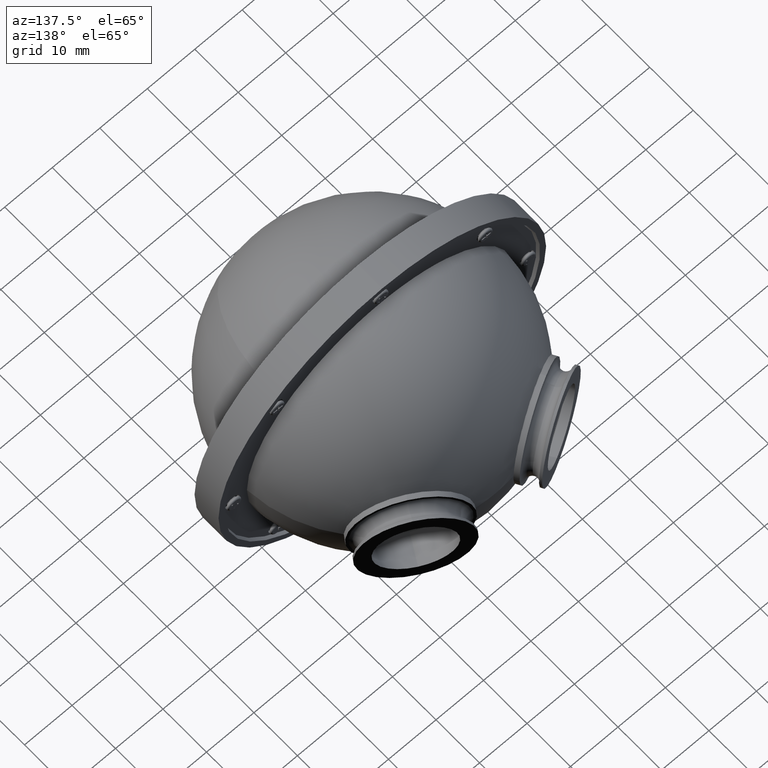
[diagram: clean part render]
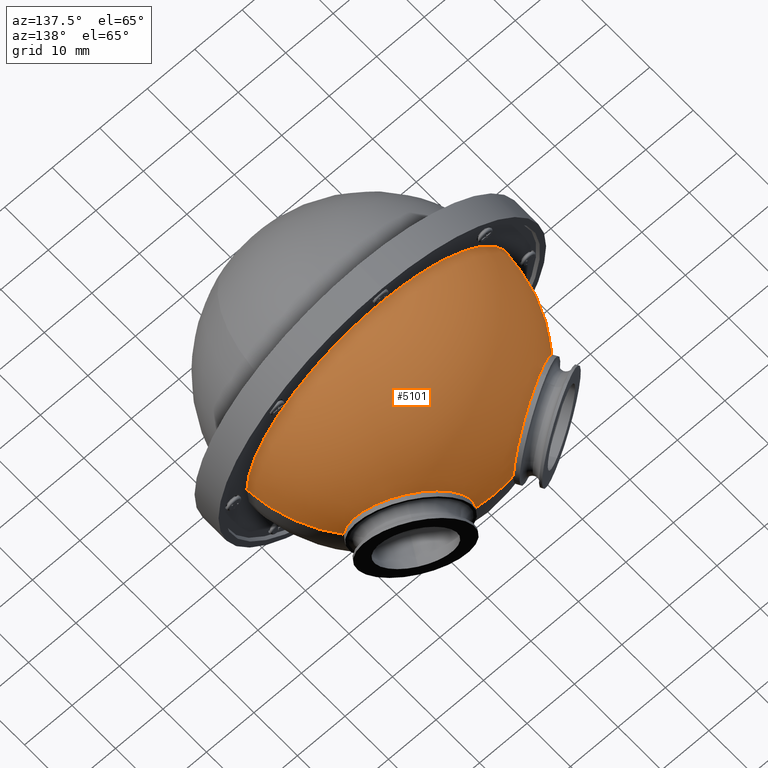
[diagram: same view with one face highlighted and labeled with its STEP entity id]
A machine part, auxiliary view. The second image highlights one B-rep face of the part: STEP entity #5101.
In plain terms, the highlighted spherical surface has radius 28 mm.
Its self-contained STEP definition (entity closure, byte-faithful):
#7 = VERTEX_POINT ( 'NONE', #3384 ) ;
#177 = DIRECTION ( 'NONE',  ( 1.000000000000000000, 0.000000000000000000, -1.224646799147353207E-16 ) ) ;
#181 = EDGE_CURVE ( 'NONE', #4169, #5608, #2011, .T. ) ;
#206 = ORIENTED_EDGE ( 'NONE', *, *, #214, .T. ) ;
#214 = EDGE_CURVE ( 'NONE', #1042, #969, #6303, .T. ) ;
#863 = DIRECTION ( 'NONE',  ( 0.000000000000000000, 0.000000000000000000, -1.000000000000000000 ) ) ;
#880 = AXIS2_PLACEMENT_3D ( 'NONE', #4226, #3654, #2482 ) ;
#969 = VERTEX_POINT ( 'NONE', #1597 ) ;
#1015 = EDGE_CURVE ( 'NONE', #1053, #5608, #2603, .T. ) ;
#1042 = VERTEX_POINT ( 'NONE', #1250 ) ;
#1053 = VERTEX_POINT ( 'NONE', #1897 ) ;
#1154 = ORIENTED_EDGE ( 'NONE', *, *, #1015, .T. ) ;
#1242 = AXIS2_PLACEMENT_3D ( 'NONE', #3358, #4354, #1448 ) ;
#1245 = ORIENTED_EDGE ( 'NONE', *, *, #181, .F. ) ;
#1250 = CARTESIAN_POINT ( 'NONE',  ( 4.067576156830836176, 9.738637418628080411, 5.408582529792328972E-16 ) ) ;
#1448 = DIRECTION ( 'NONE',  ( 0.000000000000000000, 0.000000000000000000, -1.000000000000000000 ) ) ;
#1597 = CARTESIAN_POINT ( 'NONE',  ( -13.25293191885799615, -0.2613625813718163382, 2.662008730429053827E-15 ) ) ;
#1643 = DIRECTION ( 'NONE',  ( 0.000000000000000000, 0.000000000000000000, -1.000000000000000000 ) ) ;
#1897 = CARTESIAN_POINT ( 'NONE',  ( -19.47577361042331745, -16.41086588718419748, 3.424087046346671680E-15 ) ) ;
#2011 = CIRCLE ( 'NONE', #6920, 28.00000000000000000 ) ;
#2014 = DIRECTION ( 'NONE',  ( -1.000000000000000000, 0.000000000000000000, 0.000000000000000000 ) ) ;
#2032 = EDGE_CURVE ( 'NONE', #3606, #4169, #7513, .T. ) ;
#2061 = DIRECTION ( 'NONE',  ( 1.000000000000000000, 0.000000000000000000, 0.000000000000000000 ) ) ;
#2438 = DIRECTION ( 'NONE',  ( 1.224646799147353207E-16, -0.000000000000000000, 1.000000000000000000 ) ) ;
#2482 = DIRECTION ( 'NONE',  ( 0.8660254037844400399, -0.4999999999999976685, 0.000000000000000000 ) ) ;
#2603 = CIRCLE ( 'NONE', #1242, 27.95979256003163016 ) ;
#2728 = DIRECTION ( 'NONE',  ( -1.000000000000000000, 0.000000000000000000, 0.000000000000000000 ) ) ;
#2985 = AXIS2_PLACEMENT_3D ( 'NONE', #3371, #7496, #5646 ) ;
#3358 = CARTESIAN_POINT ( 'NONE',  ( 8.484018949608307381, -16.41086588718419748, 0.000000000000000000 ) ) ;
#3371 = CARTESIAN_POINT ( 'NONE',  ( -4.592677881013579544, 4.738637418628132814, 0.000000000000000000 ) ) ;
#3384 = CARTESIAN_POINT ( 'NONE',  ( 8.484018949608309157, 10.08913411281580075, 0.000000000000000000 ) ) ;
#3606 = VERTEX_POINT ( 'NONE', #4075 ) ;
#3654 = DIRECTION ( 'NONE',  ( 0.4999999999999975020, 0.8660254037844400399, 0.000000000000000000 ) ) ;
#3945 = ORIENTED_EDGE ( 'NONE', *, *, #6544, .T. ) ;
#4014 = ORIENTED_EDGE ( 'NONE', *, *, #7271, .T. ) ;
#4019 = AXIS2_PLACEMENT_3D ( 'NONE', #7289, #863, #2014 ) ;
#4075 = CARTESIAN_POINT ( 'NONE',  ( 12.90046174238585230, 9.738637418628066200, 0.000000000000000000 ) ) ;
#4169 = VERTEX_POINT ( 'NONE', #6462 ) ;
#4226 = CARTESIAN_POINT ( 'NONE',  ( 21.56071578023026447, 4.738637418628083964, 0.000000000000000000 ) ) ;
#4354 = DIRECTION ( 'NONE',  ( -0.000000000000000000, 1.000000000000000000, -0.000000000000000000 ) ) ;
#4418 = ORIENTED_EDGE ( 'NONE', *, *, #6713, .F. ) ;
#4646 = CARTESIAN_POINT ( 'NONE',  ( 8.484018949608307381, -17.91086588718419748, 0.000000000000000000 ) ) ;
#4981 = SPHERICAL_SURFACE ( 'NONE', #5002, 28.00000000000000000 ) ;
#5002 = AXIS2_PLACEMENT_3D ( 'NONE', #7330, #7296, #2061 ) ;
#5076 = DIRECTION ( 'NONE',  ( 1.000000000000000000, 0.000000000000000000, -1.224646799147353207E-16 ) ) ;
#5101 = ADVANCED_FACE ( 'NONE', ( #5597 ), #4981, .T. ) ;
#5136 = CIRCLE ( 'NONE', #5638, 28.00000000000000000 ) ;
#5229 = CARTESIAN_POINT ( 'NONE',  ( 36.44381150963993576, -16.41086588718419748, 0.000000000000000000 ) ) ;
#5393 = CARTESIAN_POINT ( 'NONE',  ( 8.484018949608307381, -17.91086588718419748, 0.000000000000000000 ) ) ;
#5597 = FACE_OUTER_BOUND ( 'NONE', #7463, .T. ) ;
#5608 = VERTEX_POINT ( 'NONE', #5229 ) ;
#5638 = AXIS2_PLACEMENT_3D ( 'NONE', #5393, #2438, #177 ) ;
#5643 = CIRCLE ( 'NONE', #5883, 28.00000000000000000 ) ;
#5646 = DIRECTION ( 'NONE',  ( 0.8660254037844415942, 0.4999999999999947820, 0.000000000000000000 ) ) ;
#5771 = ORIENTED_EDGE ( 'NONE', *, *, #2032, .F. ) ;
#5883 = AXIS2_PLACEMENT_3D ( 'NONE', #4646, #6955, #5076 ) ;
#6303 = CIRCLE ( 'NONE', #2985, 10.00000000000000178 ) ;
#6369 = CIRCLE ( 'NONE', #4019, 28.00000000000000000 ) ;
#6462 = CARTESIAN_POINT ( 'NONE',  ( 30.22096981807467131, -0.2613625813718961632, 0.000000000000000000 ) ) ;
#6544 = EDGE_CURVE ( 'NONE', #7, #1042, #5136, .T. ) ;
#6713 = EDGE_CURVE ( 'NONE', #7, #3606, #6369, .T. ) ;
#6920 = AXIS2_PLACEMENT_3D ( 'NONE', #7453, #1643, #2728 ) ;
#6955 = DIRECTION ( 'NONE',  ( 1.224646799147353207E-16, -0.000000000000000000, 1.000000000000000000 ) ) ;
#7271 = EDGE_CURVE ( 'NONE', #969, #1053, #5643, .T. ) ;
#7289 = CARTESIAN_POINT ( 'NONE',  ( 8.484018949608307381, -17.91086588718419748, 0.000000000000000000 ) ) ;
#7296 = DIRECTION ( 'NONE',  ( 0.000000000000000000, 0.000000000000000000, 1.000000000000000000 ) ) ;
#7330 = CARTESIAN_POINT ( 'NONE',  ( 8.484018949608307381, -17.91086588718419748, 0.000000000000000000 ) ) ;
#7453 = CARTESIAN_POINT ( 'NONE',  ( 8.484018949608307381, -17.91086588718419748, 0.000000000000000000 ) ) ;
#7463 = EDGE_LOOP ( 'NONE', ( #4418, #3945, #206, #4014, #1154, #1245, #5771 ) ) ;
#7496 = DIRECTION ( 'NONE',  ( 0.4999999999999948930, -0.8660254037844417052, -0.000000000000000000 ) ) ;
#7513 = CIRCLE ( 'NONE', #880, 10.00000000000000711 ) ;